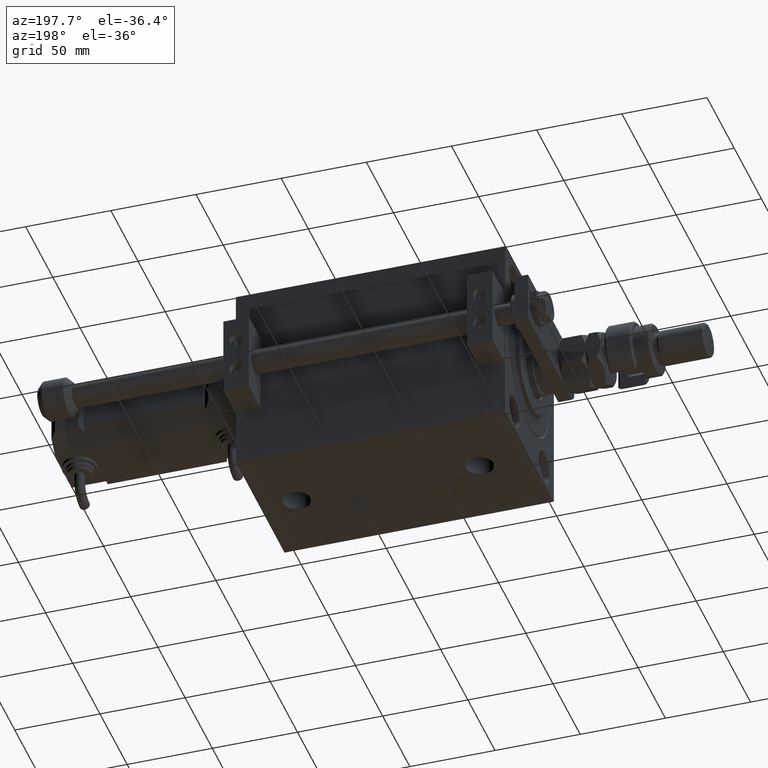
[diagram: clean part render]
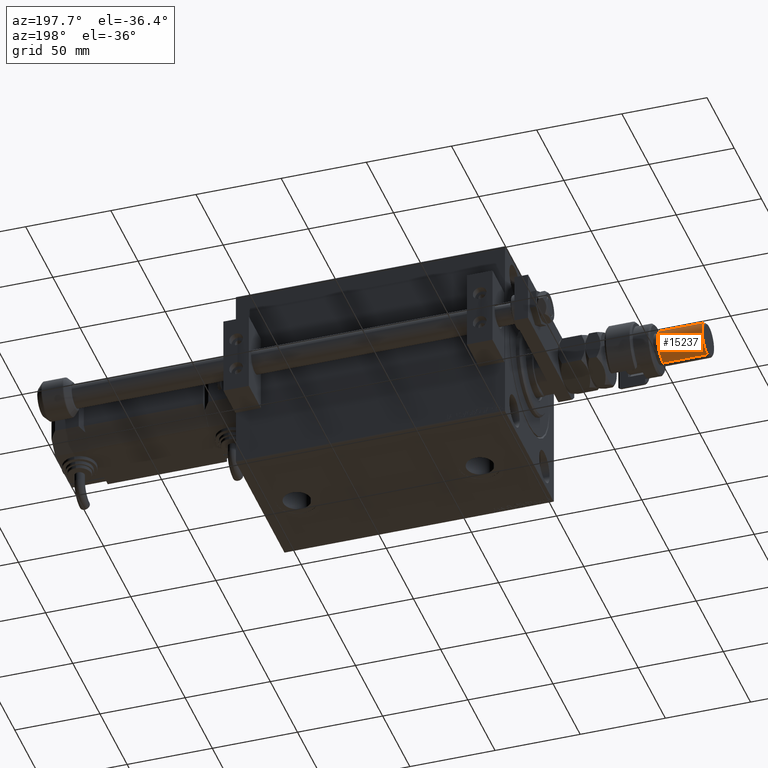
[diagram: same view with one face highlighted and labeled with its STEP entity id]
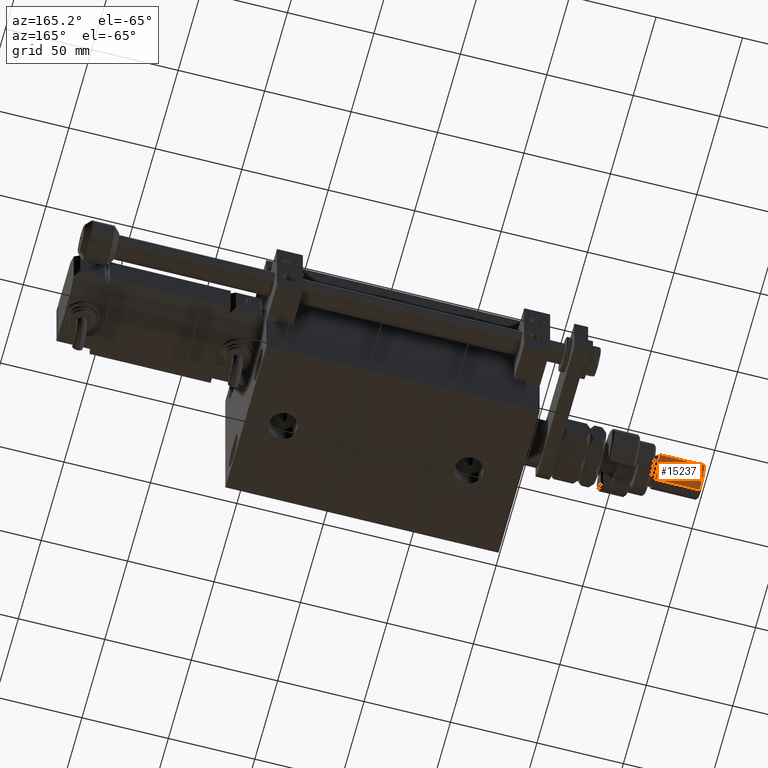
[diagram: same view with one face highlighted and labeled with its STEP entity id]
A machine part, auxiliary view. The second image highlights one B-rep face of the part: STEP entity #15237.
A second angle (auxiliary view) of the same face is appended — the face is thin or edge-on in the first view.
In plain terms, the highlighted cylindrical surface (edge-blend (fillet) strip) has radius 10 mm, axis along (1, -0, -0).
Its self-contained STEP definition (entity closure, byte-faithful):
#1028 = CARTESIAN_POINT ( 'NONE',  ( 0.000000000000000000, 0.000000000000000000, 29.00000000000000711 ) ) ;
#1667 = DIRECTION ( 'NONE',  ( -1.000000000000000000, 0.000000000000000000, 0.000000000000000000 ) ) ;
#1785 = EDGE_CURVE ( 'NONE', #6407, #2584, #20282, .T. ) ;
#2306 = AXIS2_PLACEMENT_3D ( 'NONE', #13945, #19090, #30565 ) ;
#2584 = VERTEX_POINT ( 'NONE', #16820 ) ;
#3070 = ORIENTED_EDGE ( 'NONE', *, *, #7476, .T. ) ;
#5720 = CARTESIAN_POINT ( 'NONE',  ( -10.00000000000000000, 0.000000000000000000, 54.99999999999998579 ) ) ;
#6280 = CARTESIAN_POINT ( 'NONE',  ( 0.000000000000000000, 0.000000000000000000, 56.00000000000000711 ) ) ;
#6407 = VERTEX_POINT ( 'NONE', #37415 ) ;
#7235 = DIRECTION ( 'NONE',  ( -0.000000000000000000, -0.000000000000000000, -1.000000000000000000 ) ) ;
#7476 = EDGE_CURVE ( 'NONE', #25623, #6407, #51997, .T. ) ;
#7542 = ORIENTED_EDGE ( 'NONE', *, *, #1785, .T. ) ;
#7738 = ORIENTED_EDGE ( 'NONE', *, *, #39177, .F. ) ;
#10250 = DIRECTION ( 'NONE',  ( 1.000000000000000000, 0.000000000000000000, 0.000000000000000000 ) ) ;
#11471 = EDGE_LOOP ( 'NONE', ( #3070, #7542, #20536, #7738 ) ) ;
#11563 = CARTESIAN_POINT ( 'NONE',  ( 10.00000000000000000, 1.224646799147353256E-15, 56.00000000000000711 ) ) ;
#13267 = DIRECTION ( 'NONE',  ( -0.000000000000000000, -0.000000000000000000, 1.000000000000000000 ) ) ;
#13945 = CARTESIAN_POINT ( 'NONE',  ( 0.000000000000000000, 0.000000000000000000, 54.99999999999998579 ) ) ;
#14175 = FACE_OUTER_BOUND ( 'NONE', #11471, .T. ) ;
#15237 = ADVANCED_FACE ( 'NONE', ( #14175 ), #34889, .T. ) ;
#16820 = CARTESIAN_POINT ( 'NONE',  ( 10.00000000000000000, 1.224646799147353256E-15, 29.00000000000000711 ) ) ;
#18133 = CARTESIAN_POINT ( 'NONE',  ( -10.00000000000000000, 0.000000000000000000, 29.00000000000000711 ) ) ;
#19090 = DIRECTION ( 'NONE',  ( 0.000000000000000000, 0.000000000000000000, -1.000000000000000000 ) ) ;
#20282 = LINE ( 'NONE', #11563, #29138 ) ;
#20536 = ORIENTED_EDGE ( 'NONE', *, *, #43117, .T. ) ;
#24277 = VERTEX_POINT ( 'NONE', #18133 ) ;
#25623 = VERTEX_POINT ( 'NONE', #5720 ) ;
#29138 = VECTOR ( 'NONE', #7235, 1000.000000000000000 ) ;
#29258 = CIRCLE ( 'NONE', #48413, 10.00000000000000000 ) ;
#30565 = DIRECTION ( 'NONE',  ( 1.000000000000000000, 0.000000000000000000, 0.000000000000000000 ) ) ;
#31712 = VECTOR ( 'NONE', #43373, 1000.000000000000000 ) ;
#34889 = CYLINDRICAL_SURFACE ( 'NONE', #42639, 10.00000000000000000 ) ;
#37415 = CARTESIAN_POINT ( 'NONE',  ( 10.00000000000000000, 1.224646799147353256E-15, 54.99999999999998579 ) ) ;
#39177 = EDGE_CURVE ( 'NONE', #25623, #24277, #39551, .T. ) ;
#39251 = DIRECTION ( 'NONE',  ( -0.000000000000000000, -0.000000000000000000, -1.000000000000000000 ) ) ;
#39551 = LINE ( 'NONE', #39824, #31712 ) ;
#39824 = CARTESIAN_POINT ( 'NONE',  ( -10.00000000000000000, 0.000000000000000000, 56.00000000000000711 ) ) ;
#42639 = AXIS2_PLACEMENT_3D ( 'NONE', #6280, #39251, #1667 ) ;
#43117 = EDGE_CURVE ( 'NONE', #2584, #24277, #29258, .T. ) ;
#43373 = DIRECTION ( 'NONE',  ( -0.000000000000000000, -0.000000000000000000, -1.000000000000000000 ) ) ;
#48413 = AXIS2_PLACEMENT_3D ( 'NONE', #1028, #13267, #10250 ) ;
#51997 = CIRCLE ( 'NONE', #2306, 10.00000000000000000 ) ;